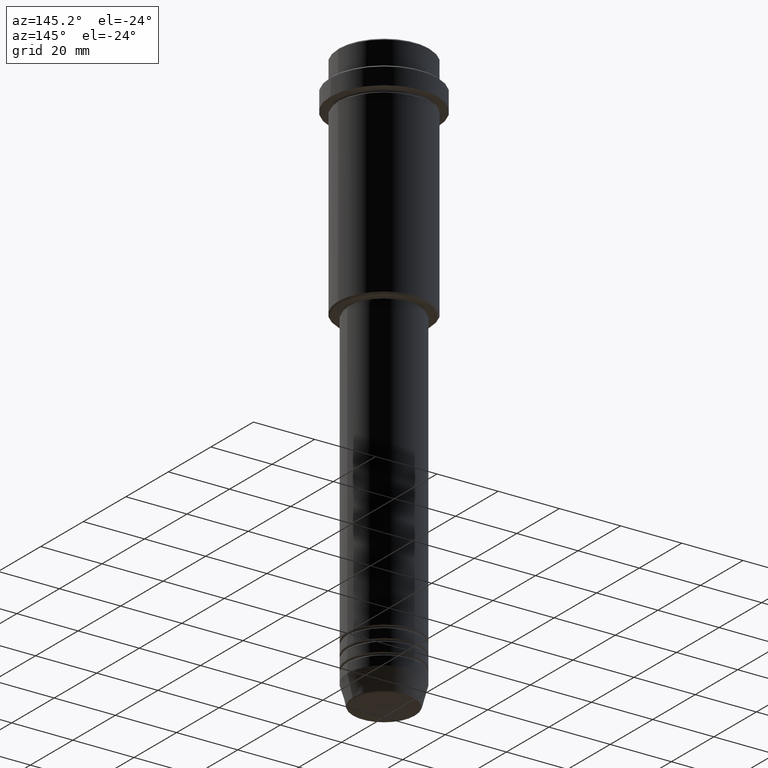
[diagram: clean part render]
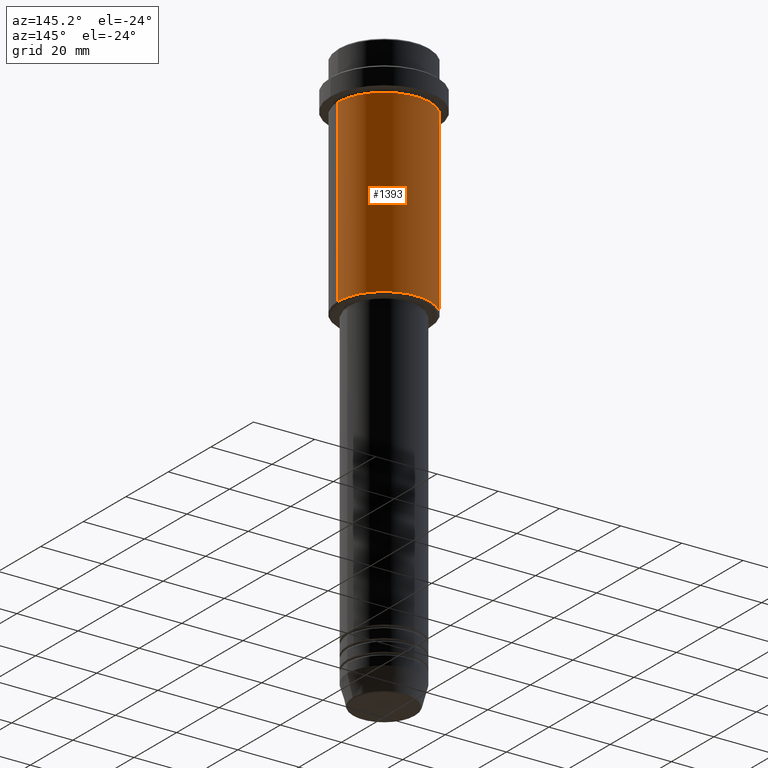
[diagram: same view with one face highlighted and labeled with its STEP entity id]
A machine part, auxiliary view. The second image highlights one B-rep face of the part: STEP entity #1393.
In plain terms, the highlighted cylindrical surface (partial cylindrical patch) has radius 15 mm, axis along (-0, -0, 1).
Its self-contained STEP definition (entity closure, byte-faithful):
#2 = ORIENTED_EDGE ( 'NONE', *, *, #1385, .T. ) ;
#25 = DIRECTION ( 'NONE',  ( 1.000000000000000000, 0.000000000000000000, 0.000000000000000000 ) ) ;
#106 = VERTEX_POINT ( 'NONE', #835 ) ;
#127 = CARTESIAN_POINT ( 'NONE',  ( 0.000000000000000000, 0.000000000000000000, -16.00000000000000000 ) ) ;
#154 = EDGE_CURVE ( 'NONE', #1296, #960, #1374, .T. ) ;
#157 = CARTESIAN_POINT ( 'NONE',  ( -15.00000000000000000, 1.836970198721029589E-15, 0.000000000000000000 ) ) ;
#166 = CIRCLE ( 'NONE', #442, 15.00000000000000178 ) ;
#182 = CARTESIAN_POINT ( 'NONE',  ( 15.00000000000000000, 0.000000000000000000, -74.50000000000000000 ) ) ;
#194 = DIRECTION ( 'NONE',  ( -0.000000000000000000, -0.000000000000000000, 1.000000000000000000 ) ) ;
#215 = CIRCLE ( 'NONE', #1101, 15.00000000000000000 ) ;
#241 = DIRECTION ( 'NONE',  ( -0.000000000000000000, -0.000000000000000000, 1.000000000000000000 ) ) ;
#338 = ORIENTED_EDGE ( 'NONE', *, *, #154, .F. ) ;
#400 = CARTESIAN_POINT ( 'NONE',  ( 15.00000000000000000, 0.000000000000000000, 0.000000000000000000 ) ) ;
#401 = AXIS2_PLACEMENT_3D ( 'NONE', #1171, #194, #1057 ) ;
#414 = VERTEX_POINT ( 'NONE', #1249 ) ;
#415 = CARTESIAN_POINT ( 'NONE',  ( 15.00000000000000178, 0.000000000000000000, -16.00000000000000000 ) ) ;
#418 = VECTOR ( 'NONE', #952, 1000.000000000000000 ) ;
#442 = AXIS2_PLACEMENT_3D ( 'NONE', #127, #241, #25 ) ;
#522 = CYLINDRICAL_SURFACE ( 'NONE', #401, 15.00000000000000000 ) ;
#626 = DIRECTION ( 'NONE',  ( -1.000000000000000000, 0.000000000000000000, 0.000000000000000000 ) ) ;
#641 = DIRECTION ( 'NONE',  ( -0.000000000000000000, -0.000000000000000000, 1.000000000000000000 ) ) ;
#727 = EDGE_CURVE ( 'NONE', #960, #414, #166, .T. ) ;
#732 = CARTESIAN_POINT ( 'NONE',  ( 0.000000000000000000, 0.000000000000000000, -74.50000000000000000 ) ) ;
#835 = CARTESIAN_POINT ( 'NONE',  ( -15.00000000000000000, 1.836970198721029589E-15, -74.50000000000000000 ) ) ;
#912 = LINE ( 'NONE', #157, #1011 ) ;
#945 = FACE_OUTER_BOUND ( 'NONE', #1289, .T. ) ;
#952 = DIRECTION ( 'NONE',  ( -0.000000000000000000, -0.000000000000000000, 1.000000000000000000 ) ) ;
#960 = VERTEX_POINT ( 'NONE', #415 ) ;
#1011 = VECTOR ( 'NONE', #1036, 1000.000000000000000 ) ;
#1036 = DIRECTION ( 'NONE',  ( -0.000000000000000000, -0.000000000000000000, 1.000000000000000000 ) ) ;
#1057 = DIRECTION ( 'NONE',  ( 1.000000000000000000, 0.000000000000000000, 0.000000000000000000 ) ) ;
#1101 = AXIS2_PLACEMENT_3D ( 'NONE', #732, #641, #626 ) ;
#1115 = ORIENTED_EDGE ( 'NONE', *, *, #1155, .T. ) ;
#1155 = EDGE_CURVE ( 'NONE', #106, #414, #912, .T. ) ;
#1171 = CARTESIAN_POINT ( 'NONE',  ( 0.000000000000000000, 0.000000000000000000, 0.000000000000000000 ) ) ;
#1249 = CARTESIAN_POINT ( 'NONE',  ( -15.00000000000000355, 1.836970198721029983E-15, -16.00000000000000000 ) ) ;
#1289 = EDGE_LOOP ( 'NONE', ( #2, #1115, #1317, #338 ) ) ;
#1296 = VERTEX_POINT ( 'NONE', #182 ) ;
#1317 = ORIENTED_EDGE ( 'NONE', *, *, #727, .F. ) ;
#1374 = LINE ( 'NONE', #400, #418 ) ;
#1385 = EDGE_CURVE ( 'NONE', #1296, #106, #215, .T. ) ;
#1393 = ADVANCED_FACE ( 'NONE', ( #945 ), #522, .T. ) ;